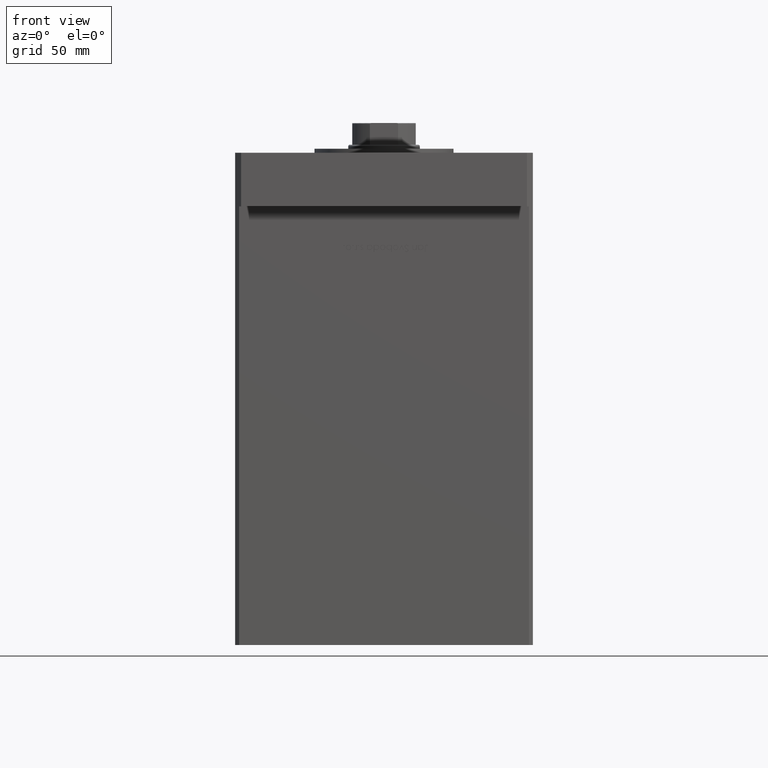
[diagram: clean part render]
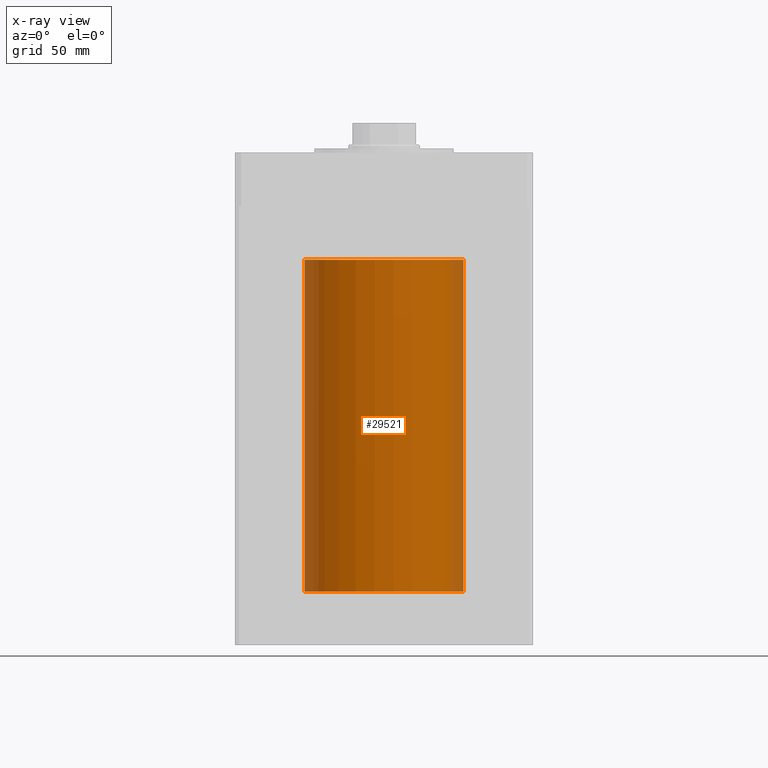
[diagram: x-ray — body ghosted, one internal face saturated and labeled with its STEP entity id]
A machine part, front view, then the same camera in x-ray: the body is ghosted and one INTERNAL B-rep face — a face not visible from any outside direction — is saturated and labeled: STEP entity #29521.
In plain terms, the highlighted cylindrical surface (partial cylindrical patch) has radius 40 mm, axis along (-0, -0, -1).
Its self-contained STEP definition (entity closure, byte-faithful):
#743 = VECTOR ( 'NONE', #42744, 1000.000000000000000 ) ;
#1254 = DIRECTION ( 'NONE',  ( -0.000000000000000000, 0.000000000000000000, 1.000000000000000000 ) ) ;
#2283 = CARTESIAN_POINT ( 'NONE',  ( 0.000000000000000000, 0.000000000000000000, 0.000000000000000000 ) ) ;
#6897 = ORIENTED_EDGE ( 'NONE', *, *, #21180, .F. ) ;
#8993 = VERTEX_POINT ( 'NONE', #49182 ) ;
#12809 = DIRECTION ( 'NONE',  ( -1.000000000000000000, 0.000000000000000000, 0.000000000000000000 ) ) ;
#15724 = AXIS2_PLACEMENT_3D ( 'NONE', #2283, #31777, #18811 ) ;
#15744 = LINE ( 'NONE', #23854, #46746 ) ;
#16328 = CYLINDRICAL_SURFACE ( 'NONE', #19849, 40.00000000000000000 ) ;
#18811 = DIRECTION ( 'NONE',  ( 1.000000000000000000, 0.000000000000000000, 0.000000000000000000 ) ) ;
#19849 = AXIS2_PLACEMENT_3D ( 'NONE', #49641, #24724, #12809 ) ;
#21180 = EDGE_CURVE ( 'NONE', #46972, #23597, #47726, .T. ) ;
#22256 = EDGE_CURVE ( 'NONE', #29251, #8993, #26969, .T. ) ;
#23597 = VERTEX_POINT ( 'NONE', #46218 ) ;
#23854 = CARTESIAN_POINT ( 'NONE',  ( 40.00000000000000000, 4.898587196589412237E-15, 167.0000000000000000 ) ) ;
#24097 = DIRECTION ( 'NONE',  ( 1.000000000000000000, 0.000000000000000000, 0.000000000000000000 ) ) ;
#24368 = ORIENTED_EDGE ( 'NONE', *, *, #32659, .T. ) ;
#24384 = EDGE_LOOP ( 'NONE', ( #28925, #24368, #6897, #44109 ) ) ;
#24724 = DIRECTION ( 'NONE',  ( -0.000000000000000000, -0.000000000000000000, -1.000000000000000000 ) ) ;
#26228 = CARTESIAN_POINT ( 'NONE',  ( -40.00000000000000000, 0.000000000000000000, 167.0000000000000000 ) ) ;
#26969 = CIRCLE ( 'NONE', #31295, 40.00000000000000000 ) ;
#27379 = EDGE_CURVE ( 'NONE', #29251, #46972, #50891, .T. ) ;
#28925 = ORIENTED_EDGE ( 'NONE', *, *, #22256, .T. ) ;
#29251 = VERTEX_POINT ( 'NONE', #31428 ) ;
#29521 = ADVANCED_FACE ( 'NONE', ( #52118 ), #16328, .F. ) ;
#31295 = AXIS2_PLACEMENT_3D ( 'NONE', #37079, #1254, #24097 ) ;
#31428 = CARTESIAN_POINT ( 'NONE',  ( -40.00000000000000000, 0.000000000000000000, 167.0000000000000000 ) ) ;
#31777 = DIRECTION ( 'NONE',  ( -0.000000000000000000, 0.000000000000000000, 1.000000000000000000 ) ) ;
#32659 = EDGE_CURVE ( 'NONE', #8993, #23597, #15744, .T. ) ;
#37079 = CARTESIAN_POINT ( 'NONE',  ( 0.000000000000000000, 0.000000000000000000, 167.0000000000000000 ) ) ;
#42744 = DIRECTION ( 'NONE',  ( -0.000000000000000000, -0.000000000000000000, -1.000000000000000000 ) ) ;
#44109 = ORIENTED_EDGE ( 'NONE', *, *, #27379, .F. ) ;
#45815 = CARTESIAN_POINT ( 'NONE',  ( -40.00000000000000000, 0.000000000000000000, 0.000000000000000000 ) ) ;
#46218 = CARTESIAN_POINT ( 'NONE',  ( 40.00000000000000000, 4.898587196589412237E-15, 0.000000000000000000 ) ) ;
#46746 = VECTOR ( 'NONE', #46979, 1000.000000000000000 ) ;
#46972 = VERTEX_POINT ( 'NONE', #45815 ) ;
#46979 = DIRECTION ( 'NONE',  ( -0.000000000000000000, -0.000000000000000000, -1.000000000000000000 ) ) ;
#47726 = CIRCLE ( 'NONE', #15724, 40.00000000000000000 ) ;
#49182 = CARTESIAN_POINT ( 'NONE',  ( 40.00000000000000000, 4.898587196589412237E-15, 167.0000000000000000 ) ) ;
#49641 = CARTESIAN_POINT ( 'NONE',  ( 0.000000000000000000, 0.000000000000000000, 167.0000000000000000 ) ) ;
#50891 = LINE ( 'NONE', #26228, #743 ) ;
#52118 = FACE_OUTER_BOUND ( 'NONE', #24384, .T. ) ;